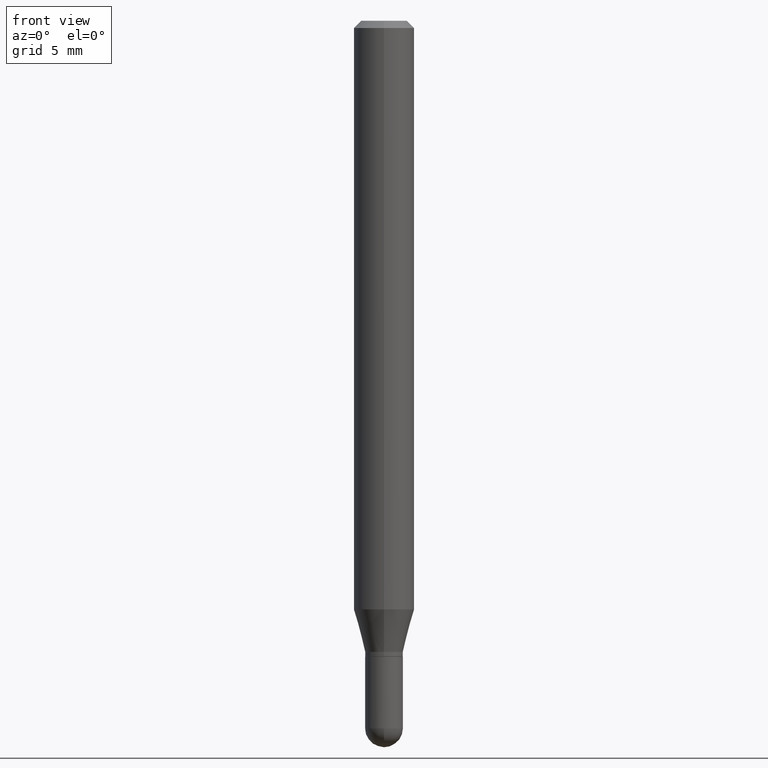
[diagram: clean part render]
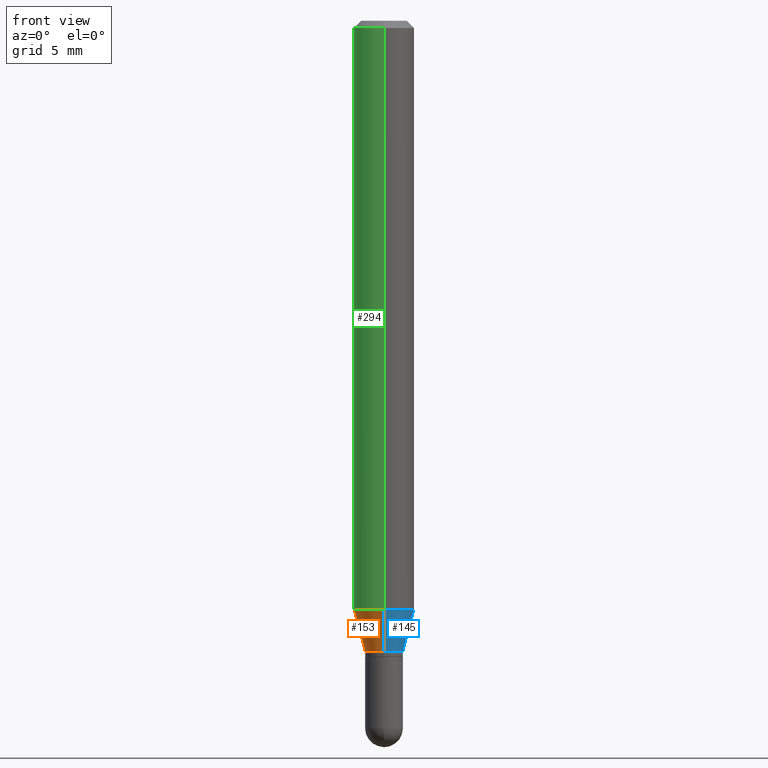
[diagram: same view with three faces highlighted in distinct colors, each labeled with its STEP entity id]
A machine part, front view with three faces highlighted in distinct colors.
Their STEP definitions:

[orange] entity #153 — the highlighted conical surface has half-angle 15 deg.
#10 = CARTESIAN_POINT ( 'NONE',  ( -4.364351673553621364E-16, -0.06250000000000427436, -1.215483408562511025 ) ) ;
#30 = DIRECTION ( 'NONE',  ( -6.982962677686265922E-15, -1.000000000000000000, 0.000000000000000000 ) ) ;
#44 = CIRCLE ( 'NONE', #332, 0.06250000000000000000 ) ;
#53 = ORIENTED_EDGE ( 'NONE', *, *, #258, .T. ) ;
#67 = CARTESIAN_POINT ( 'NONE',  ( -2.726846925636181991E-16, -0.03905000000000474758, -1.303000000000000380 ) ) ;
#83 = EDGE_CURVE ( 'NONE', #426, #137, #136, .T. ) ;
#99 = DIRECTION ( 'NONE',  ( -1.807323732225331323E-15, -0.2588190451025183525, 0.9659258262890689783 ) ) ;
#103 = FACE_OUTER_BOUND ( 'NONE', #168, .T. ) ;
#114 = VERTEX_POINT ( 'NONE', #410 ) ;
#136 = LINE ( 'NONE', #67, #425 ) ;
#137 = VERTEX_POINT ( 'NONE', #10 ) ;
#153 = ADVANCED_FACE ( 'NONE', ( #103 ), #375, .T. ) ;
#168 = EDGE_LOOP ( 'NONE', ( #477, #53, #275, #207 ) ) ;
#189 = CARTESIAN_POINT ( 'NONE',  ( 2.774669383143523138E-16, 0.03904999999999564375, -1.303000000000000380 ) ) ;
#192 = CARTESIAN_POINT ( 'NONE',  ( 3.607780740822223794E-16, 0.03904999999999564375, -1.303000000000000380 ) ) ;
#196 = CARTESIAN_POINT ( 'NONE',  ( 3.186766958803931544E-29, -4.548940344814889109E-15, -1.303000000000000380 ) ) ;
#203 = EDGE_CURVE ( 'NONE', #217, #114, #497, .T. ) ;
#207 = ORIENTED_EDGE ( 'NONE', *, *, #504, .F. ) ;
#217 = VERTEX_POINT ( 'NONE', #192 ) ;
#258 = EDGE_CURVE ( 'NONE', #217, #426, #412, .T. ) ;
#265 = DIRECTION ( 'NONE',  ( -2.445715240831873182E-29, 3.491128430402830124E-15, 1.000000000000000000 ) ) ;
#275 = ORIENTED_EDGE ( 'NONE', *, *, #83, .T. ) ;
#284 = CARTESIAN_POINT ( 'NONE',  ( 2.972726297299607962E-29, -4.243408684315521466E-15, -1.215483408562511247 ) ) ;
#332 = AXIS2_PLACEMENT_3D ( 'NONE', #284, #509, #503 ) ;
#336 = DIRECTION ( 'NONE',  ( -6.982962677686265922E-15, -1.000000000000000000, 0.000000000000000000 ) ) ;
#352 = VECTOR ( 'NONE', #457, 39.37007874015748854 ) ;
#353 = CARTESIAN_POINT ( 'NONE',  ( -2.726846925636181991E-16, -0.03905000000000474758, -1.303000000000000380 ) ) ;
#369 = CARTESIAN_POINT ( 'NONE',  ( 3.186766958803931544E-29, -4.548940344814889109E-15, -1.303000000000000380 ) ) ;
#375 = CONICAL_SURFACE ( 'NONE', #467, 0.03905000000000019567, 0.2617993877991504625 ) ;
#404 = DIRECTION ( 'NONE',  ( -2.445715240831873182E-29, 3.491128430402830124E-15, 1.000000000000000000 ) ) ;
#410 = CARTESIAN_POINT ( 'NONE',  ( 4.440892098500919026E-16, 0.06249999999999571176, -1.215483408562511469 ) ) ;
#412 = CIRCLE ( 'NONE', #473, 0.03905000000000019567 ) ;
#425 = VECTOR ( 'NONE', #99, 39.37007874015748854 ) ;
#426 = VERTEX_POINT ( 'NONE', #353 ) ;
#457 = DIRECTION ( 'NONE',  ( 1.839019923739601499E-15, 0.2588190451025251249, 0.9659258262890670910 ) ) ;
#467 = AXIS2_PLACEMENT_3D ( 'NONE', #369, #404, #336 ) ;
#473 = AXIS2_PLACEMENT_3D ( 'NONE', #196, #265, #30 ) ;
#477 = ORIENTED_EDGE ( 'NONE', *, *, #203, .F. ) ;
#497 = LINE ( 'NONE', #189, #352 ) ;
#503 = DIRECTION ( 'NONE',  ( -6.982962677686265922E-15, -1.000000000000000000, 4.370956789862821150E-15 ) ) ;
#504 = EDGE_CURVE ( 'NONE', #114, #137, #44, .T. ) ;
#509 = DIRECTION ( 'NONE',  ( -2.445715240831873182E-29, 3.491128430402830124E-15, 1.000000000000000000 ) ) ;

[blue] entity #145 — the highlighted conical surface has half-angle 15 deg.
#9 = ORIENTED_EDGE ( 'NONE', *, *, #203, .T. ) ;
#10 = CARTESIAN_POINT ( 'NONE',  ( -4.364351673553621364E-16, -0.06250000000000427436, -1.215483408562511025 ) ) ;
#13 = DIRECTION ( 'NONE',  ( -2.445715240831873182E-29, 3.491128430402830124E-15, 1.000000000000000000 ) ) ;
#19 = DIRECTION ( 'NONE',  ( -6.982962677686265922E-15, -1.000000000000000000, 0.000000000000000000 ) ) ;
#67 = CARTESIAN_POINT ( 'NONE',  ( -2.726846925636181991E-16, -0.03905000000000474758, -1.303000000000000380 ) ) ;
#79 = AXIS2_PLACEMENT_3D ( 'NONE', #366, #13, #177 ) ;
#83 = EDGE_CURVE ( 'NONE', #426, #137, #136, .T. ) ;
#99 = DIRECTION ( 'NONE',  ( -1.807323732225331323E-15, -0.2588190451025183525, 0.9659258262890689783 ) ) ;
#106 = DIRECTION ( 'NONE',  ( -2.445715240831873182E-29, 3.491128430402830124E-15, 1.000000000000000000 ) ) ;
#114 = VERTEX_POINT ( 'NONE', #410 ) ;
#136 = LINE ( 'NONE', #67, #425 ) ;
#137 = VERTEX_POINT ( 'NONE', #10 ) ;
#143 = CARTESIAN_POINT ( 'NONE',  ( 3.186766958803931544E-29, -4.548940344814889109E-15, -1.303000000000000380 ) ) ;
#145 = ADVANCED_FACE ( 'NONE', ( #402 ), #492, .T. ) ;
#175 = EDGE_CURVE ( 'NONE', #137, #114, #296, .T. ) ;
#177 = DIRECTION ( 'NONE',  ( -6.982962677686265922E-15, -1.000000000000000000, 4.370956789862821150E-15 ) ) ;
#182 = CARTESIAN_POINT ( 'NONE',  ( 3.186766958803931544E-29, -4.548940344814889109E-15, -1.303000000000000380 ) ) ;
#189 = CARTESIAN_POINT ( 'NONE',  ( 2.774669383143523138E-16, 0.03904999999999564375, -1.303000000000000380 ) ) ;
#192 = CARTESIAN_POINT ( 'NONE',  ( 3.607780740822223794E-16, 0.03904999999999564375, -1.303000000000000380 ) ) ;
#198 = ORIENTED_EDGE ( 'NONE', *, *, #329, .T. ) ;
#203 = EDGE_CURVE ( 'NONE', #217, #114, #497, .T. ) ;
#205 = ORIENTED_EDGE ( 'NONE', *, *, #83, .F. ) ;
#217 = VERTEX_POINT ( 'NONE', #192 ) ;
#257 = DIRECTION ( 'NONE',  ( -2.445715240831873182E-29, 3.491128430402830124E-15, 1.000000000000000000 ) ) ;
#296 = CIRCLE ( 'NONE', #79, 0.06250000000000000000 ) ;
#300 = DIRECTION ( 'NONE',  ( -6.982962677686265922E-15, -1.000000000000000000, 0.000000000000000000 ) ) ;
#329 = EDGE_CURVE ( 'NONE', #426, #217, #401, .T. ) ;
#346 = AXIS2_PLACEMENT_3D ( 'NONE', #182, #257, #19 ) ;
#352 = VECTOR ( 'NONE', #457, 39.37007874015748854 ) ;
#353 = CARTESIAN_POINT ( 'NONE',  ( -2.726846925636181991E-16, -0.03905000000000474758, -1.303000000000000380 ) ) ;
#366 = CARTESIAN_POINT ( 'NONE',  ( 2.972726297299607962E-29, -4.243408684315521466E-15, -1.215483408562511247 ) ) ;
#386 = AXIS2_PLACEMENT_3D ( 'NONE', #143, #106, #300 ) ;
#401 = CIRCLE ( 'NONE', #386, 0.03905000000000019567 ) ;
#402 = FACE_OUTER_BOUND ( 'NONE', #433, .T. ) ;
#403 = ORIENTED_EDGE ( 'NONE', *, *, #175, .F. ) ;
#410 = CARTESIAN_POINT ( 'NONE',  ( 4.440892098500919026E-16, 0.06249999999999571176, -1.215483408562511469 ) ) ;
#425 = VECTOR ( 'NONE', #99, 39.37007874015748854 ) ;
#426 = VERTEX_POINT ( 'NONE', #353 ) ;
#433 = EDGE_LOOP ( 'NONE', ( #198, #9, #403, #205 ) ) ;
#457 = DIRECTION ( 'NONE',  ( 1.839019923739601499E-15, 0.2588190451025251249, 0.9659258262890670910 ) ) ;
#492 = CONICAL_SURFACE ( 'NONE', #346, 0.03905000000000019567, 0.2617993877991504625 ) ;
#497 = LINE ( 'NONE', #189, #352 ) ;

[green] entity #294 — the highlighted cylindrical surface (edge-blend (fillet) strip) has radius 1.5875 mm, axis along (-0, 0, 1).
#2 = VERTEX_POINT ( 'NONE', #47 ) ;
#10 = CARTESIAN_POINT ( 'NONE',  ( -4.364351673553621364E-16, -0.06250000000000427436, -1.215483408562511025 ) ) ;
#44 = CIRCLE ( 'NONE', #332, 0.06250000000000000000 ) ;
#47 = CARTESIAN_POINT ( 'NONE',  ( 4.440892098500924943E-16, 0.06249999999999995837, -0.01500000000000057711 ) ) ;
#49 = ORIENTED_EDGE ( 'NONE', *, *, #459, .T. ) ;
#58 = ORIENTED_EDGE ( 'NONE', *, *, #472, .F. ) ;
#63 = VECTOR ( 'NONE', #511, 39.37007874015748143 ) ;
#98 = DIRECTION ( 'NONE',  ( -6.982962677686265922E-15, -1.000000000000000000, 3.483106191921934765E-15 ) ) ;
#104 = AXIS2_PLACEMENT_3D ( 'NONE', #502, #493, #304 ) ;
#111 = EDGE_LOOP ( 'NONE', ( #58, #454, #49, #314 ) ) ;
#114 = VERTEX_POINT ( 'NONE', #410 ) ;
#134 = EDGE_CURVE ( 'NONE', #2, #244, #383, .T. ) ;
#137 = VERTEX_POINT ( 'NONE', #10 ) ;
#148 = FACE_OUTER_BOUND ( 'NONE', #111, .T. ) ;
#199 = DIRECTION ( 'NONE',  ( -2.445715240831873463E-29, 3.491128430402830124E-15, 1.000000000000000000 ) ) ;
#226 = DIRECTION ( 'NONE',  ( -2.445715240831873182E-29, 3.491128430402830124E-15, 1.000000000000000000 ) ) ;
#244 = VERTEX_POINT ( 'NONE', #339 ) ;
#253 = LINE ( 'NONE', #350, #63 ) ;
#268 = CYLINDRICAL_SURFACE ( 'NONE', #104, 0.06250000000000001388 ) ;
#284 = CARTESIAN_POINT ( 'NONE',  ( 2.972726297299607962E-29, -4.243408684315521466E-15, -1.215483408562511247 ) ) ;
#294 = ADVANCED_FACE ( 'NONE', ( #148 ), #268, .T. ) ;
#304 = DIRECTION ( 'NONE',  ( -6.982962677686265133E-15, -1.000000000000000000, 3.491128430402829729E-15 ) ) ;
#314 = ORIENTED_EDGE ( 'NONE', *, *, #134, .F. ) ;
#332 = AXIS2_PLACEMENT_3D ( 'NONE', #284, #509, #503 ) ;
#339 = CARTESIAN_POINT ( 'NONE',  ( -4.364351673553913736E-16, -0.06250000000000006939, -0.01500000000000014169 ) ) ;
#350 = CARTESIAN_POINT ( 'NONE',  ( 4.440892098500626162E-16, 0.06250000000000001388, -2.181955269001769074E-16 ) ) ;
#357 = LINE ( 'NONE', #505, #411 ) ;
#383 = CIRCLE ( 'NONE', #409, 0.06250000000000001388 ) ;
#409 = AXIS2_PLACEMENT_3D ( 'NONE', #440, #226, #98 ) ;
#410 = CARTESIAN_POINT ( 'NONE',  ( 4.440892098500919026E-16, 0.06249999999999571176, -1.215483408562511469 ) ) ;
#411 = VECTOR ( 'NONE', #199, 39.37007874015748143 ) ;
#440 = CARTESIAN_POINT ( 'NONE',  ( 3.668572861247897004E-31, -5.236692645604369505E-17, -0.01500000000000035853 ) ) ;
#454 = ORIENTED_EDGE ( 'NONE', *, *, #504, .T. ) ;
#459 = EDGE_CURVE ( 'NONE', #137, #244, #357, .T. ) ;
#472 = EDGE_CURVE ( 'NONE', #114, #2, #253, .T. ) ;
#493 = DIRECTION ( 'NONE',  ( -2.445715240831873182E-29, 3.491128430402830124E-15, 1.000000000000000000 ) ) ;
#502 = CARTESIAN_POINT ( 'NONE',  ( 0.000000000000000000, 0.000000000000000000, 0.000000000000000000 ) ) ;
#503 = DIRECTION ( 'NONE',  ( -6.982962677686265922E-15, -1.000000000000000000, 4.370956789862821150E-15 ) ) ;
#504 = EDGE_CURVE ( 'NONE', #114, #137, #44, .T. ) ;
#505 = CARTESIAN_POINT ( 'NONE',  ( -4.364351673553916694E-16, -0.06250000000000001388, 2.181955269001769074E-16 ) ) ;
#509 = DIRECTION ( 'NONE',  ( -2.445715240831873182E-29, 3.491128430402830124E-15, 1.000000000000000000 ) ) ;
#511 = DIRECTION ( 'NONE',  ( -2.445715240831873463E-29, 3.491128430402830124E-15, 1.000000000000000000 ) ) ;